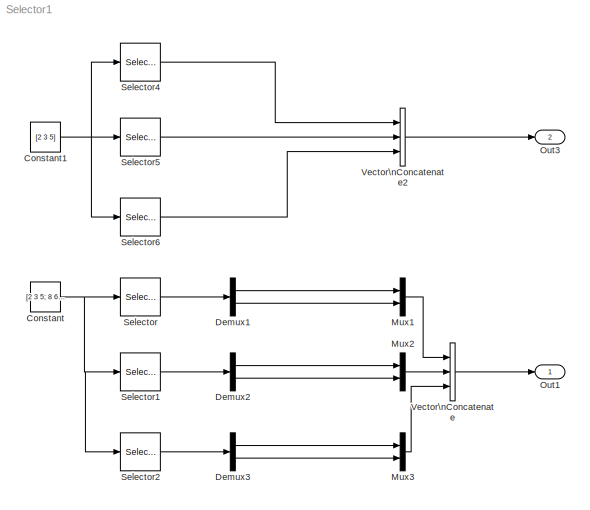
MODEL Selector1
KIND model
BLOCK [Constant] Constant
  SID = 21
  Value = [2 3 5; 8 6 9]
BLOCK [Constant] Constant1
  SID = 47
  Value = [2 3 5]
BLOCK [Demux] Demux1
  DisplayOption = bar
  Outputs = 2
  Ports = [1, 2]
  SID = 15
BLOCK [Demux] Demux2
  DisplayOption = bar
  Outputs = 2
  Ports = [1, 2]
  SID = 23
BLOCK [Demux] Demux3
  DisplayOption = bar
  Outputs = 2
  Ports = [1, 2]
  SID = 26
BLOCK [Mux] Mux1
  DisplayOption = bar
  Inputs = 2
  Ports = [2, 1]
  SID = 16
BLOCK [Mux] Mux2
  DisplayOption = bar
  Inputs = 2
  Ports = [2, 1]
  SID = 24
BLOCK [Mux] Mux3
  DisplayOption = bar
  Inputs = 2
  Ports = [2, 1]
  SID = 27
BLOCK [Outport] Out1
  IconDisplay = Port number
  SID = 8
BLOCK [Outport] Out3
  IconDisplay = Port number
  Port = 2
  SID = 36
BLOCK [Selector] Selector
  IndexOptions = Select all,Index vector (dialog)
  Indices = 1,1
  InputPortWidth = 3
  NumberOfDimensions = 2
  OutputSizes = 1,1
  Ports = [1, 1]
  SID = 14
BLOCK [Selector] Selector1
  IndexOptions = Select all,Index vector (dialog)
  Indices = 1,2
  InputPortWidth = 3
  NumberOfDimensions = 2
  OutputSizes = 1,1
  Ports = [1, 1]
  SID = 25
BLOCK [Selector] Selector2
  IndexOptions = Select all,Index vector (dialog)
  Indices = 1,3
  InputPortWidth = 3
  NumberOfDimensions = 2
  OutputSizes = 1,1
  Ports = [1, 1]
  SID = 28
BLOCK [Selector] Selector4
  IndexOptions = Select all,Index vector (dialog)
  Indices = 1,1
  InputPortWidth = 3
  NumberOfDimensions = 2
  OutputSizes = 1,1
  Ports = [1, 1]
  SID = 43
BLOCK [Selector] Selector5
  IndexOptions = Select all,Index vector (dialog)
  Indices = 1,2
  InputPortWidth = 3
  NumberOfDimensions = 2
  OutputSizes = 1,1
  Ports = [1, 1]
  SID = 44
BLOCK [Selector] Selector6
  IndexOptions = Select all,Index vector (dialog)
  Indices = 1,3
  InputPortWidth = 3
  NumberOfDimensions = 2
  OutputSizes = 1,1
  Ports = [1, 1]
  SID = 45
BLOCK [Concatenate] Vector\nConcatenate
  ConcatenateDimension = 2
  Mode = Multidimensional array
  NumInputs = 3
  Ports = [3, 1]
  SID = 22
BLOCK [Concatenate] Vector\nConcatenate2
  ConcatenateDimension = 2
  Mode = Multidimensional array
  NumInputs = 3
  Ports = [3, 1]
  SID = 46
NET Constant1:1 -> Selector4:1, Selector5:1, Selector6:1
NET Constant:1 -> Selector1:1, Selector2:1, Selector:1
LINE Demux1:1 -> Mux1:1
LINE Demux1:2 -> Mux1:2
LINE Demux2:1 -> Mux2:1
LINE Demux2:2 -> Mux2:2
LINE Demux3:1 -> Mux3:1
LINE Demux3:2 -> Mux3:2
LINE Mux1:1 -> Vector\nConcatenate:1
LINE Mux2:1 -> Vector\nConcatenate:2
LINE Mux3:1 -> Vector\nConcatenate:3
LINE Selector1:1 -> Demux2:1
LINE Selector2:1 -> Demux3:1
LINE Selector4:1 -> Vector\nConcatenate2:1
LINE Selector5:1 -> Vector\nConcatenate2:2
LINE Selector6:1 -> Vector\nConcatenate2:3
LINE Selector:1 -> Demux1:1
LINE Vector\nConcatenate2:1 -> Out3:1
LINE Vector\nConcatenate:1 -> Out1:1
note: NET lines group one-source signal fan-out (src -> all destinations, sorted); 1:1 wires keep LINE
